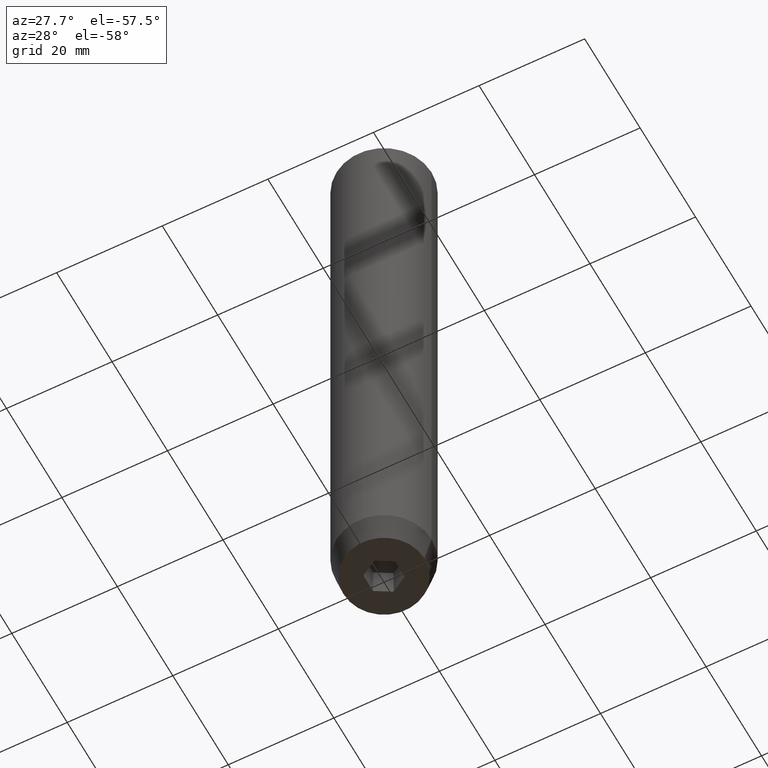
[diagram: clean part render]
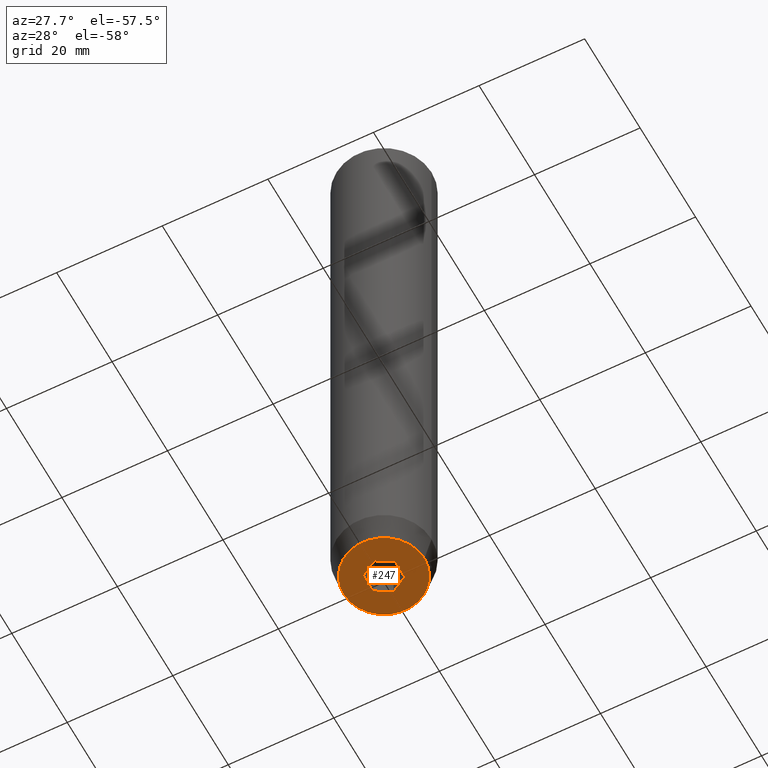
[diagram: same view with one face highlighted and labeled with its STEP entity id]
A machine part, auxiliary view. The second image highlights one B-rep face of the part: STEP entity #247.
In plain terms, the highlighted planar face has unit normal (0, 0, -1).
Its self-contained STEP definition (entity closure, byte-faithful):
#1 = EDGE_CURVE ( 'NONE', #436, #375, #466, .T. ) ;
#16 = CIRCLE ( 'NONE', #523, 7.660254037844380193 ) ;
#27 = VECTOR ( 'NONE', #587, 1000.000000000000000 ) ;
#36 = FACE_BOUND ( 'NONE', #624, .T. ) ;
#51 = ORIENTED_EDGE ( 'NONE', *, *, #356, .F. ) ;
#69 = CARTESIAN_POINT ( 'NONE',  ( 1.499999999999999556, -2.598076211353316012, -120.0000000000000000 ) ) ;
#85 = VECTOR ( 'NONE', #571, 999.9999999999998863 ) ;
#93 = VERTEX_POINT ( 'NONE', #605 ) ;
#98 = LINE ( 'NONE', #496, #253 ) ;
#108 = DIRECTION ( 'NONE',  ( 0.8660254037844387076, -0.4999999999999997780, 0.000000000000000000 ) ) ;
#110 = VERTEX_POINT ( 'NONE', #314 ) ;
#139 = CARTESIAN_POINT ( 'NONE',  ( 0.000000000000000000, 0.000000000000000000, -120.0000000000000000 ) ) ;
#140 = DIRECTION ( 'NONE',  ( -0.000000000000000000, -0.000000000000000000, 1.000000000000000000 ) ) ;
#157 = CARTESIAN_POINT ( 'NONE',  ( 1.499999999999999112, 2.598076211353316012, -120.0000000000000000 ) ) ;
#159 = ORIENTED_EDGE ( 'NONE', *, *, #178, .F. ) ;
#162 = AXIS2_PLACEMENT_3D ( 'NONE', #227, #615, #386 ) ;
#178 = EDGE_CURVE ( 'NONE', #110, #436, #529, .T. ) ;
#181 = ORIENTED_EDGE ( 'NONE', *, *, #400, .F. ) ;
#194 = VECTOR ( 'NONE', #108, 1000.000000000000114 ) ;
#202 = CARTESIAN_POINT ( 'NONE',  ( 2.168404344971008868E-16, 3.464101615137755275, -120.0000000000000000 ) ) ;
#206 = DIRECTION ( 'NONE',  ( 0.8660254037844387076, 0.4999999999999997224, 0.000000000000000000 ) ) ;
#207 = CARTESIAN_POINT ( 'NONE',  ( -1.499999999999999112, -2.598076211353316012, -120.0000000000000000 ) ) ;
#213 = VERTEX_POINT ( 'NONE', #424 ) ;
#215 = VECTOR ( 'NONE', #311, 1000.000000000000114 ) ;
#218 = VECTOR ( 'NONE', #206, 1000.000000000000114 ) ;
#227 = CARTESIAN_POINT ( 'NONE',  ( 0.000000000000000000, 7.660254037844380193, -120.0000000000000000 ) ) ;
#240 = CARTESIAN_POINT ( 'NONE',  ( -3.000000000000000000, 1.732050807568877859, -120.0000000000000000 ) ) ;
#243 = LINE ( 'NONE', #589, #27 ) ;
#247 = ADVANCED_FACE ( 'NONE', ( #36, #276 ), #338, .T. ) ;
#253 = VECTOR ( 'NONE', #445, 1000.000000000000000 ) ;
#271 = ORIENTED_EDGE ( 'NONE', *, *, #1, .F. ) ;
#273 = CIRCLE ( 'NONE', #305, 7.660254037844380193 ) ;
#276 = FACE_OUTER_BOUND ( 'NONE', #579, .T. ) ;
#291 = CARTESIAN_POINT ( 'NONE',  ( -3.000000000000000888, -1.732050807568876527, -120.0000000000000000 ) ) ;
#305 = AXIS2_PLACEMENT_3D ( 'NONE', #139, #493, #444 ) ;
#308 = CARTESIAN_POINT ( 'NONE',  ( -1.499999999999999334, 2.598076211353316456, -120.0000000000000000 ) ) ;
#310 = LINE ( 'NONE', #308, #218 ) ;
#311 = DIRECTION ( 'NONE',  ( -0.8660254037844387076, 0.4999999999999997780, 0.000000000000000000 ) ) ;
#314 = CARTESIAN_POINT ( 'NONE',  ( 2.999999999999999112, -1.732050807568876971, -120.0000000000000000 ) ) ;
#338 = PLANE ( 'NONE',  #162 ) ;
#344 = VERTEX_POINT ( 'NONE', #540 ) ;
#345 = VERTEX_POINT ( 'NONE', #240 ) ;
#348 = EDGE_CURVE ( 'NONE', #213, #93, #273, .T. ) ;
#349 = DIRECTION ( 'NONE',  ( 1.000000000000000000, 0.000000000000000000, 0.000000000000000000 ) ) ;
#356 = EDGE_CURVE ( 'NONE', #344, #110, #98, .T. ) ;
#375 = VERTEX_POINT ( 'NONE', #291 ) ;
#386 = DIRECTION ( 'NONE',  ( -1.000000000000000000, 0.000000000000000000, -0.000000000000000000 ) ) ;
#389 = EDGE_CURVE ( 'NONE', #375, #345, #243, .T. ) ;
#399 = CARTESIAN_POINT ( 'NONE',  ( 0.000000000000000000, 0.000000000000000000, -120.0000000000000000 ) ) ;
#400 = EDGE_CURVE ( 'NONE', #93, #213, #16, .T. ) ;
#424 = CARTESIAN_POINT ( 'NONE',  ( 7.660254037844380193, 0.000000000000000000, -120.0000000000000000 ) ) ;
#436 = VERTEX_POINT ( 'NONE', #594 ) ;
#444 = DIRECTION ( 'NONE',  ( 1.000000000000000000, 0.000000000000000000, 0.000000000000000000 ) ) ;
#445 = DIRECTION ( 'NONE',  ( -2.503857664561932376E-16, -1.000000000000000000, 0.000000000000000000 ) ) ;
#450 = ORIENTED_EDGE ( 'NONE', *, *, #479, .F. ) ;
#464 = VERTEX_POINT ( 'NONE', #202 ) ;
#466 = LINE ( 'NONE', #207, #215 ) ;
#479 = EDGE_CURVE ( 'NONE', #464, #344, #549, .T. ) ;
#493 = DIRECTION ( 'NONE',  ( -0.000000000000000000, -0.000000000000000000, 1.000000000000000000 ) ) ;
#496 = CARTESIAN_POINT ( 'NONE',  ( 2.999999999999999556, -7.511572993685796142E-16, -120.0000000000000000 ) ) ;
#497 = ORIENTED_EDGE ( 'NONE', *, *, #389, .F. ) ;
#519 = EDGE_CURVE ( 'NONE', #345, #464, #310, .T. ) ;
#523 = AXIS2_PLACEMENT_3D ( 'NONE', #399, #140, #349 ) ;
#529 = LINE ( 'NONE', #69, #85 ) ;
#535 = ORIENTED_EDGE ( 'NONE', *, *, #348, .F. ) ;
#540 = CARTESIAN_POINT ( 'NONE',  ( 3.000000000000000000, 1.732050807568877193, -120.0000000000000000 ) ) ;
#549 = LINE ( 'NONE', #157, #194 ) ;
#570 = ORIENTED_EDGE ( 'NONE', *, *, #519, .F. ) ;
#571 = DIRECTION ( 'NONE',  ( -0.8660254037844387076, -0.4999999999999999445, 0.000000000000000000 ) ) ;
#579 = EDGE_LOOP ( 'NONE', ( #535, #181 ) ) ;
#587 = DIRECTION ( 'NONE',  ( 2.503857664561932376E-16, 1.000000000000000000, 0.000000000000000000 ) ) ;
#589 = CARTESIAN_POINT ( 'NONE',  ( -3.000000000000000444, 7.511572993685798115E-16, -120.0000000000000000 ) ) ;
#594 = CARTESIAN_POINT ( 'NONE',  ( 0.000000000000000000, -3.464101615137753942, -120.0000000000000000 ) ) ;
#605 = CARTESIAN_POINT ( 'NONE',  ( -7.660254037844380193, 1.020146339021394272E-15, -120.0000000000000000 ) ) ;
#615 = DIRECTION ( 'NONE',  ( 0.000000000000000000, 0.000000000000000000, -1.000000000000000000 ) ) ;
#624 = EDGE_LOOP ( 'NONE', ( #570, #497, #271, #159, #51, #450 ) ) ;